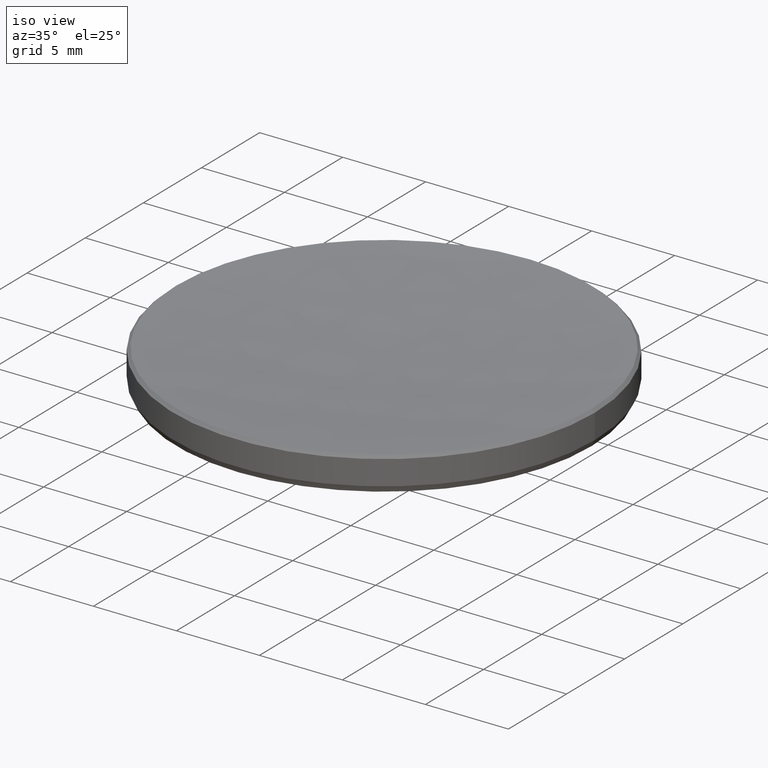
[diagram: clean part render]
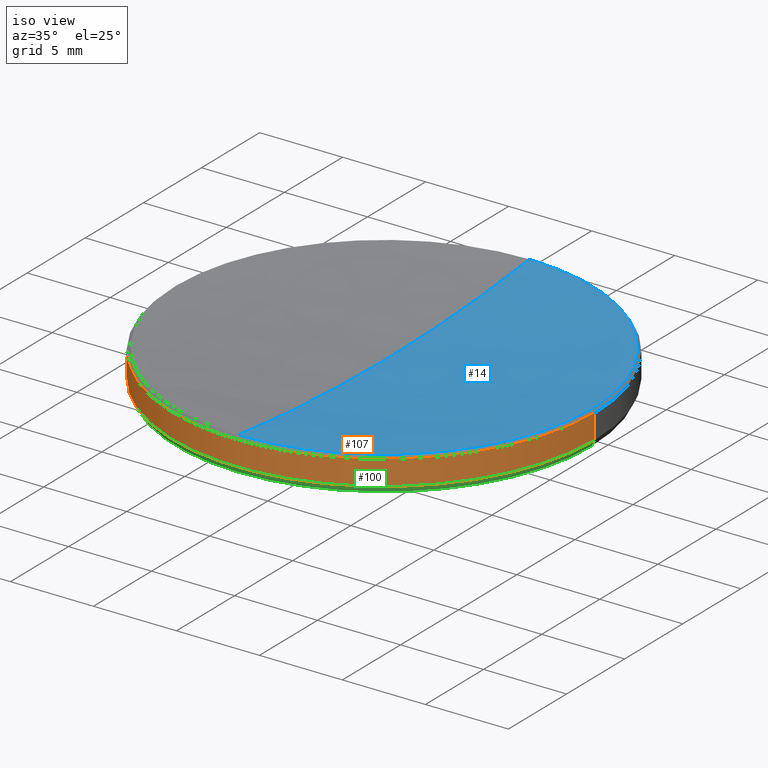
[diagram: same view with three faces highlighted in distinct colors, each labeled with its STEP entity id]
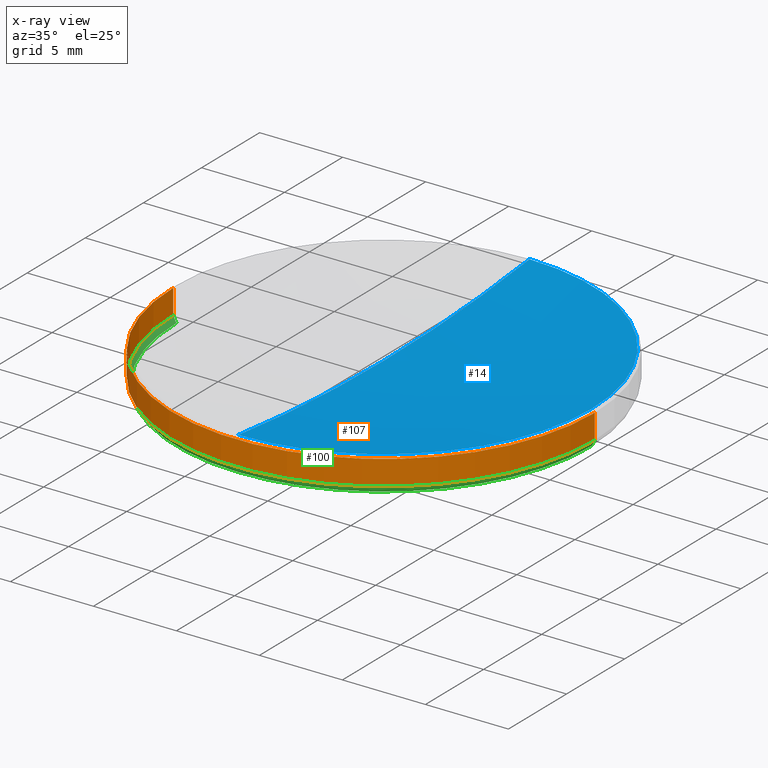
[diagram: x-ray of the same camera — body ghosted, the three highlighted faces saturated]
A machine part, iso view with three faces highlighted in distinct colors.
The next image is the same camera in x-ray (body ghosted, the three faces saturated) — at least one of them is partly hidden behind the body in this view.
Their STEP definitions:

[orange] entity #107 — the highlighted cylindrical surface (partial cylindrical patch) has radius 12.7 mm, axis along (-0, -0, -1).
#12 = VERTEX_POINT ( 'NONE', #330 ) ;
#18 = VECTOR ( 'NONE', #282, 1000.000000000000000 ) ;
#24 = EDGE_CURVE ( 'NONE', #266, #234, #65, .T. ) ;
#38 = VERTEX_POINT ( 'NONE', #77 ) ;
#48 = VECTOR ( 'NONE', #110, 1000.000000000000000 ) ;
#56 = DIRECTION ( 'NONE',  ( 0.000000000000000000, 0.000000000000000000, -1.000000000000000000 ) ) ;
#65 = CIRCLE ( 'NONE', #93, 12.69999999999999929 ) ;
#77 = CARTESIAN_POINT ( 'NONE',  ( 12.69999999999999929, 1.555301434917138433E-15, 5.799999999999999822 ) ) ;
#80 = CARTESIAN_POINT ( 'NONE',  ( 12.69999999999999929, 1.555301434917138433E-15, 4.313967534857077624 ) ) ;
#83 = CARTESIAN_POINT ( 'NONE',  ( -12.69999999999999929, 0.000000000000000000, 10.00000000000000000 ) ) ;
#92 = ORIENTED_EDGE ( 'NONE', *, *, #269, .F. ) ;
#93 = AXIS2_PLACEMENT_3D ( 'NONE', #123, #248, #275 ) ;
#99 = DIRECTION ( 'NONE',  ( -1.000000000000000000, 0.000000000000000000, 0.000000000000000000 ) ) ;
#107 = ADVANCED_FACE ( 'NONE', ( #201 ), #326, .T. ) ;
#110 = DIRECTION ( 'NONE',  ( -0.000000000000000000, -0.000000000000000000, -1.000000000000000000 ) ) ;
#112 = LINE ( 'NONE', #138, #48 ) ;
#123 = CARTESIAN_POINT ( 'NONE',  ( 0.000000000000000000, 0.000000000000000000, 4.313967534857077624 ) ) ;
#136 = AXIS2_PLACEMENT_3D ( 'NONE', #313, #56, #285 ) ;
#138 = CARTESIAN_POINT ( 'NONE',  ( 12.69999999999999929, 1.555301434917138433E-15, 10.00000000000000000 ) ) ;
#141 = ORIENTED_EDGE ( 'NONE', *, *, #152, .T. ) ;
#152 = EDGE_CURVE ( 'NONE', #38, #12, #238, .T. ) ;
#162 = EDGE_LOOP ( 'NONE', ( #92, #141, #236, #319 ) ) ;
#198 = EDGE_CURVE ( 'NONE', #12, #266, #312, .T. ) ;
#201 = FACE_OUTER_BOUND ( 'NONE', #162, .T. ) ;
#223 = DIRECTION ( 'NONE',  ( -0.000000000000000000, -0.000000000000000000, -1.000000000000000000 ) ) ;
#234 = VERTEX_POINT ( 'NONE', #80 ) ;
#236 = ORIENTED_EDGE ( 'NONE', *, *, #198, .T. ) ;
#238 = CIRCLE ( 'NONE', #136, 12.69999999999999929 ) ;
#247 = AXIS2_PLACEMENT_3D ( 'NONE', #308, #223, #99 ) ;
#248 = DIRECTION ( 'NONE',  ( -0.000000000000000000, -0.000000000000000000, 1.000000000000000000 ) ) ;
#266 = VERTEX_POINT ( 'NONE', #278 ) ;
#269 = EDGE_CURVE ( 'NONE', #38, #234, #112, .T. ) ;
#275 = DIRECTION ( 'NONE',  ( -1.000000000000000000, 0.000000000000000000, 0.000000000000000000 ) ) ;
#278 = CARTESIAN_POINT ( 'NONE',  ( -12.69999999999999929, 0.000000000000000000, 4.313967534857077624 ) ) ;
#282 = DIRECTION ( 'NONE',  ( -0.000000000000000000, -0.000000000000000000, -1.000000000000000000 ) ) ;
#285 = DIRECTION ( 'NONE',  ( 1.000000000000000000, 0.000000000000000000, 0.000000000000000000 ) ) ;
#308 = CARTESIAN_POINT ( 'NONE',  ( 0.000000000000000000, 0.000000000000000000, 10.00000000000000000 ) ) ;
#312 = LINE ( 'NONE', #83, #18 ) ;
#313 = CARTESIAN_POINT ( 'NONE',  ( 0.000000000000000000, 0.000000000000000000, 5.799999999999999822 ) ) ;
#319 = ORIENTED_EDGE ( 'NONE', *, *, #24, .T. ) ;
#326 = CYLINDRICAL_SURFACE ( 'NONE', #247, 12.69999999999999929 ) ;
#330 = CARTESIAN_POINT ( 'NONE',  ( -12.69999999999999929, 0.000000000000000000, 5.799999999999999822 ) ) ;

[blue] entity #14 — the highlighted spherical surface has radius 106.9 mm.
#14 = ADVANCED_FACE ( 'NONE', ( #307 ), #150, .F. ) ;
#29 = EDGE_CURVE ( 'NONE', #213, #66, #325, .T. ) ;
#42 = ORIENTED_EDGE ( 'NONE', *, *, #316, .T. ) ;
#53 = CARTESIAN_POINT ( 'NONE',  ( 0.000000000000000000, 0.000000000000000000, 5.978763596161104310 ) ) ;
#55 = AXIS2_PLACEMENT_3D ( 'NONE', #97, #249, #74 ) ;
#66 = VERTEX_POINT ( 'NONE', #277 ) ;
#74 = DIRECTION ( 'NONE',  ( 0.000000000000000000, 0.000000000000000000, -1.000000000000000000 ) ) ;
#81 = VERTEX_POINT ( 'NONE', #226 ) ;
#87 = DIRECTION ( 'NONE',  ( -0.000000000000000000, -0.000000000000000000, 1.000000000000000000 ) ) ;
#95 = AXIS2_PLACEMENT_3D ( 'NONE', #304, #149, #222 ) ;
#97 = CARTESIAN_POINT ( 'NONE',  ( 0.000000000000000000, 0.000000000000000000, 112.1429225148808655 ) ) ;
#140 = EDGE_CURVE ( 'NONE', #81, #145, #273, .T. ) ;
#145 = VERTEX_POINT ( 'NONE', #256 ) ;
#147 = AXIS2_PLACEMENT_3D ( 'NONE', #160, #87, #186 ) ;
#149 = DIRECTION ( 'NONE',  ( -1.000000000000000000, 0.000000000000000000, 0.000000000000000000 ) ) ;
#150 = SPHERICAL_SURFACE ( 'NONE', #95, 106.9000000000000057 ) ;
#158 = CARTESIAN_POINT ( 'NONE',  ( -1.533409208332850696E-15, -12.52123640383880421, 5.978763596161098093 ) ) ;
#160 = CARTESIAN_POINT ( 'NONE',  ( 0.000000000000000000, 0.000000000000000000, 5.978763596161104310 ) ) ;
#161 = DIRECTION ( 'NONE',  ( -1.000000000000000000, 1.224646799147353207E-16, 0.000000000000000000 ) ) ;
#186 = DIRECTION ( 'NONE',  ( 1.000000000000000000, 0.000000000000000000, 0.000000000000000000 ) ) ;
#188 = DIRECTION ( 'NONE',  ( -1.224646799147353207E-16, -1.000000000000000000, 0.000000000000000000 ) ) ;
#189 = ORIENTED_EDGE ( 'NONE', *, *, #140, .F. ) ;
#194 = AXIS2_PLACEMENT_3D ( 'NONE', #53, #270, #303 ) ;
#210 = EDGE_LOOP ( 'NONE', ( #189, #264, #317, #42 ) ) ;
#213 = VERTEX_POINT ( 'NONE', #158 ) ;
#218 = AXIS2_PLACEMENT_3D ( 'NONE', #287, #161, #188 ) ;
#222 = DIRECTION ( 'NONE',  ( 0.000000000000000000, 1.000000000000000000, 0.000000000000000000 ) ) ;
#226 = CARTESIAN_POINT ( 'NONE',  ( 0.000000000000000000, 6.545737141442603608E-15, 5.242922514880857143 ) ) ;
#249 = DIRECTION ( 'NONE',  ( 1.000000000000000000, 0.000000000000000000, 0.000000000000000000 ) ) ;
#256 = CARTESIAN_POINT ( 'NONE',  ( 0.000000000000000000, 12.52123640383880421, 5.978763596161098093 ) ) ;
#264 = ORIENTED_EDGE ( 'NONE', *, *, #321, .T. ) ;
#270 = DIRECTION ( 'NONE',  ( -0.000000000000000000, -0.000000000000000000, 1.000000000000000000 ) ) ;
#273 = CIRCLE ( 'NONE', #55, 106.9000000000000057 ) ;
#276 = CIRCLE ( 'NONE', #218, 106.9000000000000057 ) ;
#277 = CARTESIAN_POINT ( 'NONE',  ( 12.52123640383887704, 1.544355321624999001E-15, 5.978763596161104310 ) ) ;
#287 = CARTESIAN_POINT ( 'NONE',  ( 0.000000000000000000, 0.000000000000000000, 112.1429225148808655 ) ) ;
#303 = DIRECTION ( 'NONE',  ( 1.000000000000000000, 0.000000000000000000, 0.000000000000000000 ) ) ;
#304 = CARTESIAN_POINT ( 'NONE',  ( 0.000000000000000000, 0.000000000000000000, 112.1429225148808655 ) ) ;
#307 = FACE_OUTER_BOUND ( 'NONE', #210, .T. ) ;
#316 = EDGE_CURVE ( 'NONE', #66, #145, #323, .T. ) ;
#317 = ORIENTED_EDGE ( 'NONE', *, *, #29, .T. ) ;
#321 = EDGE_CURVE ( 'NONE', #81, #213, #276, .T. ) ;
#323 = CIRCLE ( 'NONE', #147, 12.52123640383887704 ) ;
#325 = CIRCLE ( 'NONE', #194, 12.52123640383887704 ) ;

[green] entity #100 — the highlighted conical surface has half-angle 26.771 deg.
#1 = DIRECTION ( 'NONE',  ( 1.000000000000000000, 0.000000000000000000, 0.000000000000000000 ) ) ;
#2 = CARTESIAN_POINT ( 'NONE',  ( 12.69999999999999929, 0.000000000000000000, 4.313967534857077624 ) ) ;
#3 = EDGE_CURVE ( 'NONE', #129, #217, #34, .T. ) ;
#4 = CARTESIAN_POINT ( 'NONE',  ( -12.69999999999999929, 1.555301434917138433E-15, 4.313967534857077624 ) ) ;
#13 = AXIS2_PLACEMENT_3D ( 'NONE', #202, #284, #257 ) ;
#22 = CARTESIAN_POINT ( 'NONE',  ( -12.51034897911231170, 1.543688659132881617E-15, 3.938057364562333351 ) ) ;
#24 = EDGE_CURVE ( 'NONE', #266, #234, #65, .T. ) ;
#34 = CIRCLE ( 'NONE', #243, 12.51034897911231170 ) ;
#43 = VERTEX_POINT ( 'NONE', #22 ) ;
#50 = AXIS2_PLACEMENT_3D ( 'NONE', #173, #148, #1 ) ;
#52 = FACE_OUTER_BOUND ( 'NONE', #322, .T. ) ;
#58 = LINE ( 'NONE', #4, #288 ) ;
#65 = CIRCLE ( 'NONE', #93, 12.69999999999999929 ) ;
#80 = CARTESIAN_POINT ( 'NONE',  ( 12.69999999999999929, 1.555301434917138433E-15, 4.313967534857077624 ) ) ;
#89 = ORIENTED_EDGE ( 'NONE', *, *, #232, .F. ) ;
#90 = ORIENTED_EDGE ( 'NONE', *, *, #24, .F. ) ;
#93 = AXIS2_PLACEMENT_3D ( 'NONE', #123, #248, #275 ) ;
#94 = ORIENTED_EDGE ( 'NONE', *, *, #3, .F. ) ;
#100 = ADVANCED_FACE ( 'NONE', ( #52 ), #306, .T. ) ;
#105 = CARTESIAN_POINT ( 'NONE',  ( 12.51034897911231170, 0.000000000000000000, 3.938057364562333351 ) ) ;
#123 = CARTESIAN_POINT ( 'NONE',  ( 0.000000000000000000, 0.000000000000000000, 4.313967534857077624 ) ) ;
#129 = VERTEX_POINT ( 'NONE', #105 ) ;
#142 = ORIENTED_EDGE ( 'NONE', *, *, #258, .T. ) ;
#148 = DIRECTION ( 'NONE',  ( -0.000000000000000000, -0.000000000000000000, 1.000000000000000000 ) ) ;
#172 = CARTESIAN_POINT ( 'NONE',  ( 0.000000000000000000, 0.000000000000000000, 3.938057364562333351 ) ) ;
#173 = CARTESIAN_POINT ( 'NONE',  ( 0.000000000000000000, 0.000000000000000000, 4.313967534857077624 ) ) ;
#202 = CARTESIAN_POINT ( 'NONE',  ( 0.000000000000000000, 0.000000000000000000, 3.938057364562333351 ) ) ;
#207 = CIRCLE ( 'NONE', #13, 12.51034897911231170 ) ;
#214 = EDGE_CURVE ( 'NONE', #43, #266, #58, .T. ) ;
#215 = VECTOR ( 'NONE', #250, 1000.000000000000114 ) ;
#217 = VERTEX_POINT ( 'NONE', #233 ) ;
#232 = EDGE_CURVE ( 'NONE', #217, #43, #207, .T. ) ;
#233 = CARTESIAN_POINT ( 'NONE',  ( -1.532075883348624801E-15, -12.51034897911230992, 3.938057364562333351 ) ) ;
#234 = VERTEX_POINT ( 'NONE', #80 ) ;
#243 = AXIS2_PLACEMENT_3D ( 'NONE', #172, #309, #272 ) ;
#248 = DIRECTION ( 'NONE',  ( -0.000000000000000000, -0.000000000000000000, 1.000000000000000000 ) ) ;
#250 = DIRECTION ( 'NONE',  ( 0.4504330560855231425, 0.000000000000000000, 0.8928102049066508616 ) ) ;
#257 = DIRECTION ( 'NONE',  ( 1.000000000000000000, 0.000000000000000000, 0.000000000000000000 ) ) ;
#258 = EDGE_CURVE ( 'NONE', #129, #234, #286, .T. ) ;
#259 = DIRECTION ( 'NONE',  ( -0.4504330560855231425, 5.516214003652961775E-17, 0.8928102049066508616 ) ) ;
#265 = ORIENTED_EDGE ( 'NONE', *, *, #214, .F. ) ;
#266 = VERTEX_POINT ( 'NONE', #278 ) ;
#272 = DIRECTION ( 'NONE',  ( 1.000000000000000000, 0.000000000000000000, 0.000000000000000000 ) ) ;
#275 = DIRECTION ( 'NONE',  ( -1.000000000000000000, 0.000000000000000000, 0.000000000000000000 ) ) ;
#278 = CARTESIAN_POINT ( 'NONE',  ( -12.69999999999999929, 0.000000000000000000, 4.313967534857077624 ) ) ;
#284 = DIRECTION ( 'NONE',  ( 0.000000000000000000, 0.000000000000000000, -1.000000000000000000 ) ) ;
#286 = LINE ( 'NONE', #2, #215 ) ;
#288 = VECTOR ( 'NONE', #259, 1000.000000000000114 ) ;
#306 = CONICAL_SURFACE ( 'NONE', #50, 12.69999999999999929, 0.4672503280471582698 ) ;
#309 = DIRECTION ( 'NONE',  ( 0.000000000000000000, 0.000000000000000000, -1.000000000000000000 ) ) ;
#322 = EDGE_LOOP ( 'NONE', ( #265, #89, #94, #142, #90 ) ) ;